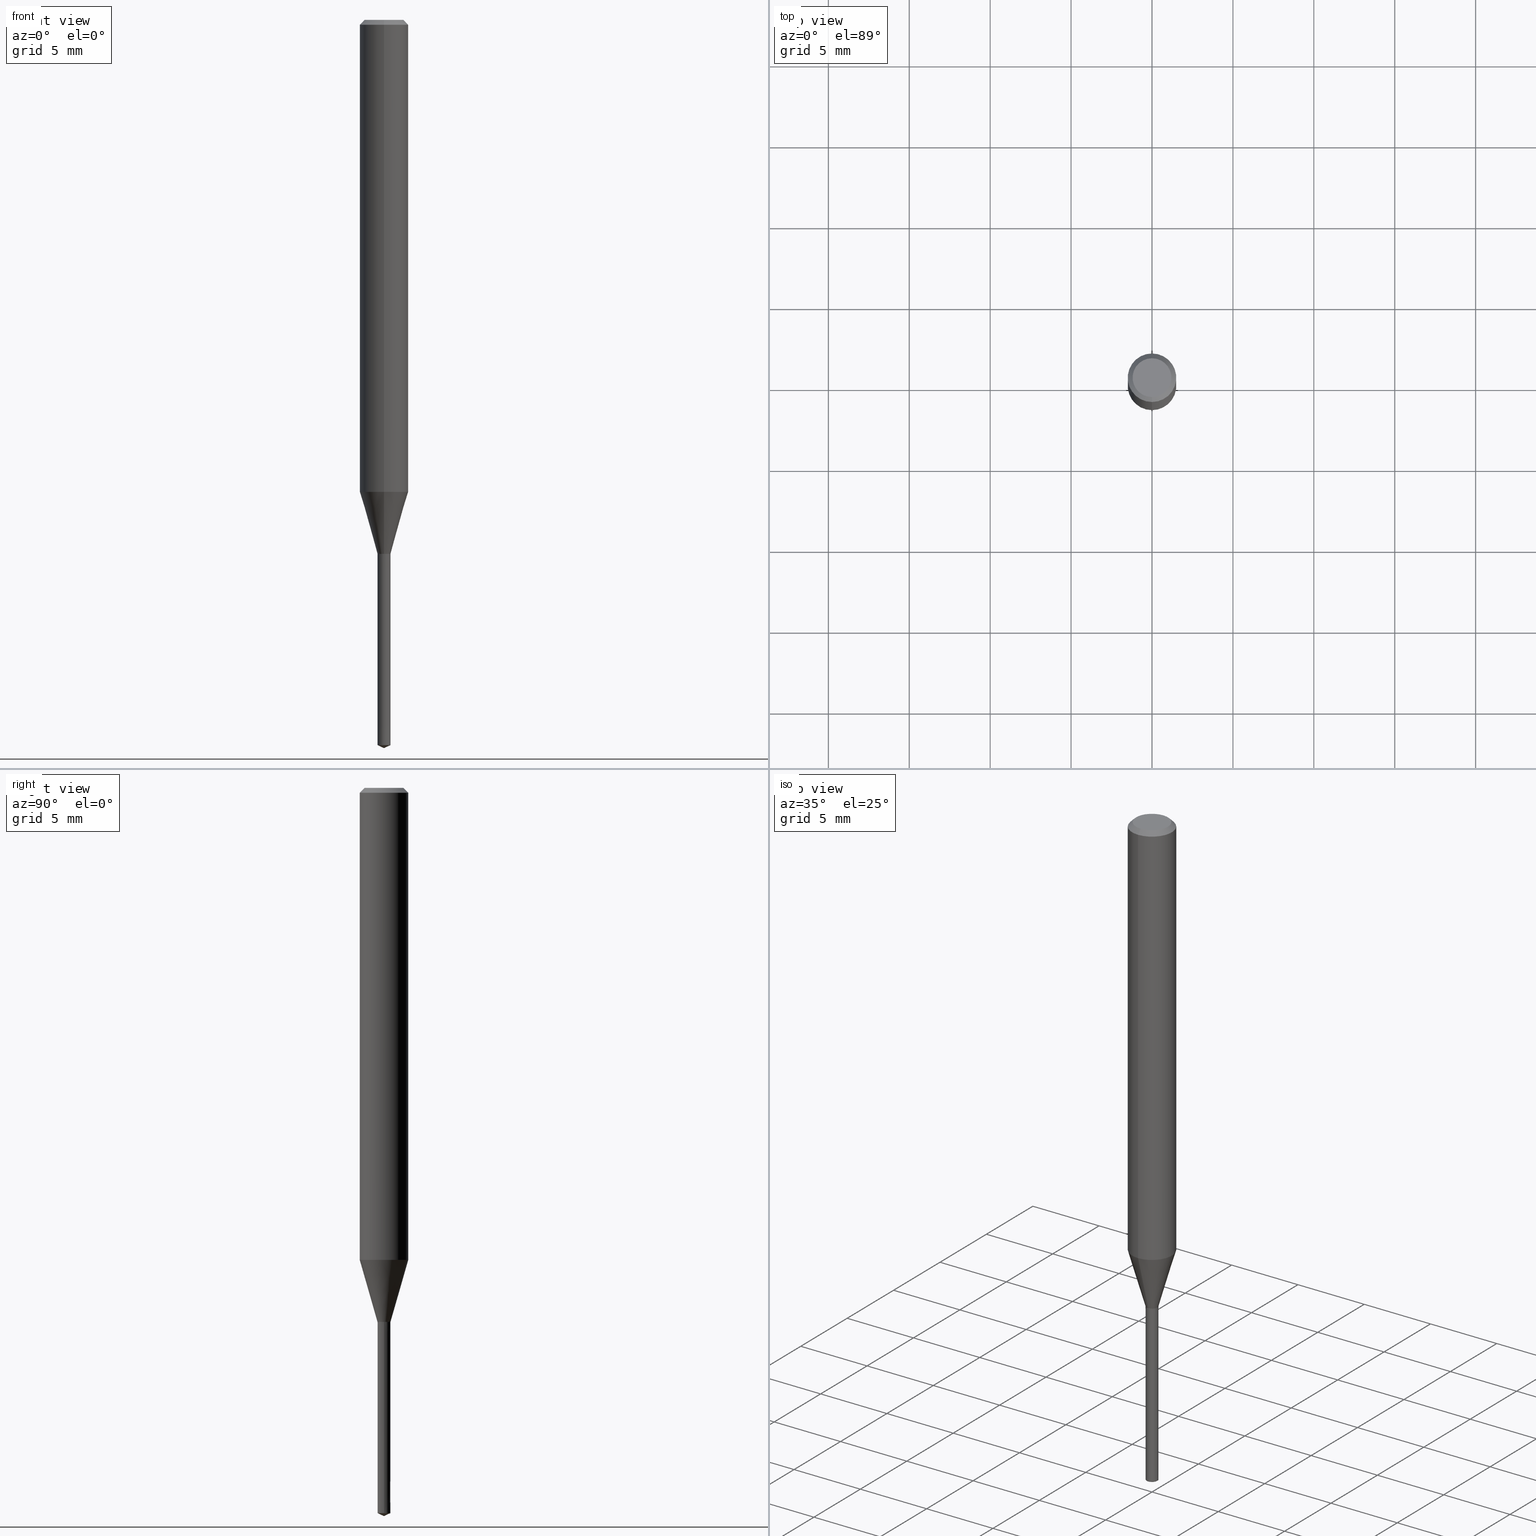
[diagram: canonical four-view strip — front | top / right | iso, engineering-drawing reading convention]
A machine part, canonical four-view strip (front | top / right | iso — engineering-drawing reading convention). The complete STEP part file that produces these views, byte-faithful:
ISO-10303-21;
HEADER;
FILE_DESCRIPTION(('no description'),'unknown implementation level');
FILE_NAME('UTDLX2080-120-Huellk.stp','  ',('CIMSOURCE GmbH'),('CADClick - KiM GmbH - www.kimweb.de'),'unknown preprocess','ACIS','unknown authorization');
FILE_SCHEMA(('automotive_design'));
ENDSEC;
DATA;
#1=MECHANICAL_DESIGN_GEOMETRIC_PRESENTATION_REPRESENTATION(' ',(#14,#15,#16,#17,#18,#19,#20,#21,#22,#23,#24,#25,#26,#27,#28,#29,#30,#31,#32,#33,#34,#35,#36,#37,#38,#39,#40,#41,#42,#43,#44,#45,#46,#47,#48,#49,#50,#51,#52,#53,#54,#55,#56,#57,#58,#59,#60,#61,#62,#63,#64,#65,#66,#67,#68,#69,#70,#71),#10);
#2=PRODUCT_DEFINITION_CONTEXT('',#72,'design');
#3=APPLICATION_PROTOCOL_DEFINITION('INTERNATIONAL STANDARD','automotive_design',1994,#72);
#4=PRODUCT_CATEGORY_RELATIONSHIP('NONE','NONE',#73,#74);
#5=SHAPE_DEFINITION_REPRESENTATION(#75,#76);
#6=PRODUCT_DEFINITION_CONTEXT('',#77,'design');
#7=APPLICATION_PROTOCOL_DEFINITION('INTERNATIONAL STANDARD','automotive_design',1994,#77);
#8=PRODUCT_CATEGORY_RELATIONSHIP('NONE','NONE',#78,#79);
#9=SHAPE_DEFINITION_REPRESENTATION(#80,#81);
#10= (GEOMETRIC_REPRESENTATION_CONTEXT(3)GLOBAL_UNCERTAINTY_ASSIGNED_CONTEXT((#84))GLOBAL_UNIT_ASSIGNED_CONTEXT((#86,#87,#88))REPRESENTATION_CONTEXT('NONE','WORKSPACE'));
#14=STYLED_ITEM('',(#90),#91);
#15=STYLED_ITEM('',(#92),#93);
#16=STYLED_ITEM('',(#94),#95);
#17=STYLED_ITEM('',(#96),#97);
#18=STYLED_ITEM('',(#98),#99);
#19=STYLED_ITEM('',(#100),#101);
#20=STYLED_ITEM('',(#102),#103);
#21=STYLED_ITEM('',(#104),#105);
#22=STYLED_ITEM('',(#106),#107);
#23=STYLED_ITEM('',(#108),#109);
#24=STYLED_ITEM('',(#110),#111);
#25=STYLED_ITEM('',(#112),#113);
#26=STYLED_ITEM('',(#114),#115);
#27=STYLED_ITEM('',(#116),#117);
#28=STYLED_ITEM('',(#118),#119);
#29=STYLED_ITEM('',(#120),#121);
#30=STYLED_ITEM('',(#122),#123);
#31=STYLED_ITEM('',(#124),#125);
#32=STYLED_ITEM('',(#126),#127);
#33=STYLED_ITEM('',(#128),#129);
#34=STYLED_ITEM('',(#130),#131);
#35=STYLED_ITEM('',(#132),#133);
#36=STYLED_ITEM('',(#134),#135);
#37=STYLED_ITEM('',(#136),#137);
#38=STYLED_ITEM('',(#138),#139);
#39=STYLED_ITEM('',(#140),#141);
#40=STYLED_ITEM('',(#142),#143);
#41=STYLED_ITEM('',(#144),#145);
#42=STYLED_ITEM('',(#146),#147);
#43=STYLED_ITEM('',(#148),#149);
#44=STYLED_ITEM('',(#150),#151);
#45=STYLED_ITEM('',(#152),#153);
#46=STYLED_ITEM('',(#154),#155);
#47=STYLED_ITEM('',(#156),#157);
#48=STYLED_ITEM('',(#158),#159);
#49=STYLED_ITEM('',(#160),#161);
#50=STYLED_ITEM('',(#162),#163);
#51=STYLED_ITEM('',(#164),#165);
#52=STYLED_ITEM('',(#166),#167);
#53=STYLED_ITEM('',(#168),#169);
#54=STYLED_ITEM('',(#170),#171);
#55=STYLED_ITEM('',(#172),#173);
#56=STYLED_ITEM('',(#174),#175);
#57=STYLED_ITEM('',(#176),#177);
#58=STYLED_ITEM('',(#178),#179);
#59=STYLED_ITEM('',(#180),#181);
#60=STYLED_ITEM('',(#182),#183);
#61=STYLED_ITEM('',(#184),#185);
#62=STYLED_ITEM('',(#186),#187);
#63=STYLED_ITEM('',(#188),#189);
#64=STYLED_ITEM('',(#190),#191);
#65=STYLED_ITEM('',(#192),#193);
#66=STYLED_ITEM('',(#194),#195);
#67=STYLED_ITEM('',(#196),#197);
#68=STYLED_ITEM('',(#198),#199);
#69=STYLED_ITEM('',(#200),#201);
#70=STYLED_ITEM('',(#202),#203);
#71=STYLED_ITEM('',(#204),#205);
#72=APPLICATION_CONTEXT(' ');
#73=PRODUCT_CATEGORY('part','NONE');
#74=PRODUCT_RELATED_PRODUCT_CATEGORY('detail',' ',(#206));
#75=PRODUCT_DEFINITION_SHAPE('NONE','NONE',#207);
#76=ADVANCED_BREP_SHAPE_REPRESENTATION('1',(#161,#208),#10);
#77=APPLICATION_CONTEXT(' ');
#78=PRODUCT_CATEGORY('part','NONE');
#79=PRODUCT_RELATED_PRODUCT_CATEGORY('detail',' ',(#209));
#80=PRODUCT_DEFINITION_SHAPE('NONE','NONE',#210);
#81=ADVANCED_BREP_SHAPE_REPRESENTATION('2',(#173,#211),#10);
#84=UNCERTAINTY_MEASURE_WITH_UNIT(LENGTH_MEASURE(1.0E-006),#86,'','');
#86= (CONVERSION_BASED_UNIT('MILLIMETRE',#214)LENGTH_UNIT()NAMED_UNIT(#217));
#87= (NAMED_UNIT(#219)PLANE_ANGLE_UNIT()SI_UNIT($,.RADIAN.));
#88= (NAMED_UNIT(#219)SOLID_ANGLE_UNIT()SI_UNIT($,.STERADIAN.));
#90=PRESENTATION_STYLE_ASSIGNMENT((#225));
#91=VERTEX_POINT('',#226);
#92=PRESENTATION_STYLE_ASSIGNMENT((#227));
#93=EDGE_CURVE('',#167,#91,#228,.T.);
#94=PRESENTATION_STYLE_ASSIGNMENT((#229));
#95=EDGE_CURVE('',#171,#147,#230,.T.);
#96=PRESENTATION_STYLE_ASSIGNMENT((#231));
#97=ADVANCED_FACE('',(#232),#233,.T.);
#98=PRESENTATION_STYLE_ASSIGNMENT((#234));
#99=EDGE_CURVE('',#91,#167,#235,.T.);
#100=PRESENTATION_STYLE_ASSIGNMENT((#236));
#101=ADVANCED_FACE('',(#237),#238,.T.);
#102=PRESENTATION_STYLE_ASSIGNMENT((#239));
#103=EDGE_CURVE('',#131,#139,#240,.T.);
#104=PRESENTATION_STYLE_ASSIGNMENT((#241));
#105=ADVANCED_FACE('',(#242),#243,.T.);
#106=PRESENTATION_STYLE_ASSIGNMENT((#244));
#107=ADVANCED_FACE('',(#245),#246,.T.);
#108=PRESENTATION_STYLE_ASSIGNMENT((#247));
#109=ADVANCED_FACE('',(#248),#249,.T.);
#110=PRESENTATION_STYLE_ASSIGNMENT((#250));
#111=EDGE_CURVE('',#91,#129,#251,.T.);
#112=PRESENTATION_STYLE_ASSIGNMENT((#252));
#113=EDGE_CURVE('',#153,#155,#253,.T.);
#114=PRESENTATION_STYLE_ASSIGNMENT((#254));
#115=EDGE_CURVE('',#157,#163,#255,.T.);
#116=PRESENTATION_STYLE_ASSIGNMENT((#256));
#117=ADVANCED_FACE('',(#257),#258,.T.);
#118=PRESENTATION_STYLE_ASSIGNMENT((#259));
#119=VERTEX_POINT('',#260);
#120=PRESENTATION_STYLE_ASSIGNMENT((#261));
#121=ADVANCED_FACE('',(#262),#263,.T.);
#122=PRESENTATION_STYLE_ASSIGNMENT((#264));
#123=EDGE_CURVE('',#147,#139,#265,.T.);
#124=PRESENTATION_STYLE_ASSIGNMENT((#266));
#125=EDGE_CURVE('',#171,#195,#267,.T.);
#126=PRESENTATION_STYLE_ASSIGNMENT((#268));
#127=EDGE_CURVE('',#163,#157,#269,.T.);
#128=PRESENTATION_STYLE_ASSIGNMENT((#270));
#129=VERTEX_POINT('',#271);
#130=PRESENTATION_STYLE_ASSIGNMENT((#272));
#131=VERTEX_POINT('',#273);
#132=PRESENTATION_STYLE_ASSIGNMENT((#274));
#133=ADVANCED_FACE('',(#275),#276,.T.);
#134=PRESENTATION_STYLE_ASSIGNMENT((#277));
#135=EDGE_CURVE('',#197,#119,#278,.T.);
#136=PRESENTATION_STYLE_ASSIGNMENT((#279));
#137=EDGE_CURVE('',#139,#195,#280,.T.);
#138=PRESENTATION_STYLE_ASSIGNMENT((#281));
#139=VERTEX_POINT('',#282);
#140=PRESENTATION_STYLE_ASSIGNMENT((#283));
#141=ADVANCED_FACE('',(#284),#285,.T.);
#142=PRESENTATION_STYLE_ASSIGNMENT((#286));
#143=EDGE_CURVE('',#119,#153,#287,.T.);
#144=PRESENTATION_STYLE_ASSIGNMENT((#288));
#145=ADVANCED_FACE('',(#289),#290,.T.);
#146=PRESENTATION_STYLE_ASSIGNMENT((#291));
#147=VERTEX_POINT('',#292);
#148=PRESENTATION_STYLE_ASSIGNMENT((#293));
#149=ADVANCED_FACE('',(#294),#295,.T.);
#150=PRESENTATION_STYLE_ASSIGNMENT((#296));
#151=EDGE_CURVE('',#157,#155,#297,.T.);
#152=PRESENTATION_STYLE_ASSIGNMENT((#298));
#153=VERTEX_POINT('',#299);
#154=PRESENTATION_STYLE_ASSIGNMENT((#300));
#155=VERTEX_POINT('',#301);
#156=PRESENTATION_STYLE_ASSIGNMENT((#302));
#157=VERTEX_POINT('',#303);
#158=PRESENTATION_STYLE_ASSIGNMENT((#304));
#159=EDGE_CURVE('',#153,#163,#305,.T.);
#160=PRESENTATION_STYLE_ASSIGNMENT((#306));
#161=MANIFOLD_SOLID_BREP('1',#307);
#162=PRESENTATION_STYLE_ASSIGNMENT((#308));
#163=VERTEX_POINT('',#309);
#164=PRESENTATION_STYLE_ASSIGNMENT((#310));
#165=ADVANCED_FACE('',(#311),#312,.T.);
#166=PRESENTATION_STYLE_ASSIGNMENT((#313));
#167=VERTEX_POINT('',#314);
#168=PRESENTATION_STYLE_ASSIGNMENT((#315));
#169=ADVANCED_FACE('',(#316),#317,.T.);
#170=PRESENTATION_STYLE_ASSIGNMENT((#318));
#171=VERTEX_POINT('',#319);
#172=PRESENTATION_STYLE_ASSIGNMENT((#320));
#173=MANIFOLD_SOLID_BREP('2',#321);
#174=PRESENTATION_STYLE_ASSIGNMENT((#322));
#175=EDGE_CURVE('',#155,#197,#323,.T.);
#176=PRESENTATION_STYLE_ASSIGNMENT((#324));
#177=ADVANCED_FACE('',(#325),#326,.T.);
#178=PRESENTATION_STYLE_ASSIGNMENT((#327));
#179=EDGE_CURVE('',#167,#119,#328,.T.);
#180=PRESENTATION_STYLE_ASSIGNMENT((#329));
#181=VERTEX_POINT('',#330);
#182=PRESENTATION_STYLE_ASSIGNMENT((#331));
#183=ADVANCED_FACE('',(#332),#333,.T.);
#184=PRESENTATION_STYLE_ASSIGNMENT((#334));
#185=EDGE_CURVE('',#195,#171,#335,.T.);
#186=PRESENTATION_STYLE_ASSIGNMENT((#336));
#187=EDGE_CURVE('',#129,#181,#337,.T.);
#188=PRESENTATION_STYLE_ASSIGNMENT((#338));
#189=EDGE_CURVE('',#181,#167,#339,.T.);
#190=PRESENTATION_STYLE_ASSIGNMENT((#340));
#191=EDGE_CURVE('',#155,#153,#341,.T.);
#192=PRESENTATION_STYLE_ASSIGNMENT((#342));
#193=EDGE_CURVE('',#119,#197,#343,.T.);
#194=PRESENTATION_STYLE_ASSIGNMENT((#344));
#195=VERTEX_POINT('',#345);
#196=PRESENTATION_STYLE_ASSIGNMENT((#346));
#197=VERTEX_POINT('',#347);
#198=PRESENTATION_STYLE_ASSIGNMENT((#348));
#199=EDGE_CURVE('',#197,#91,#349,.T.);
#200=PRESENTATION_STYLE_ASSIGNMENT((#350));
#201=EDGE_CURVE('',#181,#129,#351,.T.);
#202=PRESENTATION_STYLE_ASSIGNMENT((#352));
#203=EDGE_CURVE('',#147,#131,#353,.T.);
#204=PRESENTATION_STYLE_ASSIGNMENT((#354));
#205=EDGE_CURVE('',#139,#147,#355,.T.);
#206=PRODUCT('1','1','PART-1-DESC',(#356));
#207=PRODUCT_DEFINITION('NONE','NONE',#357,#2);
#208=AXIS2_PLACEMENT_3D('',#358,#359,#360);
#209=PRODUCT('2','2','PART-2-DESC',(#361));
#210=PRODUCT_DEFINITION('NONE','NONE',#362,#6);
#211=AXIS2_PLACEMENT_3D('',#363,#364,#365);
#214=LENGTH_MEASURE_WITH_UNIT(LENGTH_MEASURE(1.0),#366);
#217=DIMENSIONAL_EXPONENTS(1.0,0.0,0.0,0.0,0.0,0.0,0.0);
#219=DIMENSIONAL_EXPONENTS(0.0,0.0,0.0,0.0,0.0,0.0,0.0);
#225=POINT_STYLE(' ',#367,POSITIVE_LENGTH_MEASURE(1.0E-006),#368);
#226=CARTESIAN_POINT('',(0.0,0.4,-32.9991339745962));
#227=CURVE_STYLE('',#369,POSITIVE_LENGTH_MEASURE(1.0E-006),#370);
#228=CIRCLE('',#371,0.4);
#229=CURVE_STYLE('',#372,POSITIVE_LENGTH_MEASURE(1.0E-006),#373);
#230=LINE('',#374,#375);
#231=SURFACE_STYLE_USAGE(.BOTH.,#376);
#232=FACE_OUTER_BOUND('',#377,.T.);
#233=CONICAL_SURFACE('',#378,0.2,1.13446402049478);
#234=CURVE_STYLE('',#379,POSITIVE_LENGTH_MEASURE(1.0E-006),#380);
#235=CIRCLE('',#381,0.4);
#236=SURFACE_STYLE_USAGE(.BOTH.,#382);
#237=FACE_OUTER_BOUND('',#383,.T.);
#238=CONICAL_SURFACE('',#384,0.40025,0.523598775598408);
#239=CURVE_STYLE('',#385,POSITIVE_LENGTH_MEASURE(1.0E-006),#386);
#240=LINE('',#387,#388);
#241=SURFACE_STYLE_USAGE(.BOTH.,#389);
#242=FACE_OUTER_BOUND('',#390,.T.);
#243=CONICAL_SURFACE('',#391,0.40025,0.523598775598408);
#244=SURFACE_STYLE_USAGE(.BOTH.,#392);
#245=FACE_OUTER_BOUND('',#393,.T.);
#246=CYLINDRICAL_SURFACE('',#394,1.5);
#247=SURFACE_STYLE_USAGE(.BOTH.,#395);
#248=FACE_OUTER_BOUND('',#396,.T.);
#249=CONICAL_SURFACE('',#397,0.4005,8.4649083643237E-005);
#250=CURVE_STYLE('',#398,POSITIVE_LENGTH_MEASURE(1.0E-006),#399);
#251=LINE('',#400,#401);
#252=CURVE_STYLE('',#402,POSITIVE_LENGTH_MEASURE(1.0E-006),#403);
#253=CIRCLE('',#404,1.5);
#254=CURVE_STYLE('',#405,POSITIVE_LENGTH_MEASURE(1.0E-006),#406);
#255=CIRCLE('',#407,1.2);
#256=SURFACE_STYLE_USAGE(.BOTH.,#408);
#257=FACE_OUTER_BOUND('',#409,.T.);
#258=PLANE('',#410);
#259=POINT_STYLE(' ',#411,POSITIVE_LENGTH_MEASURE(1.0E-006),#412);
#260=CARTESIAN_POINT('',(1.83690953073357E-016,-1.5,-29.164));
#261=SURFACE_STYLE_USAGE(.BOTH.,#413);
#262=FACE_OUTER_BOUND('',#414,.T.);
#263=CONICAL_SURFACE('',#415,0.95,0.279323280297878);
#264=CURVE_STYLE('',#416,POSITIVE_LENGTH_MEASURE(1.0E-006),#417);
#265=CIRCLE('',#418,0.4);
#266=CURVE_STYLE('',#419,POSITIVE_LENGTH_MEASURE(1.0E-006),#420);
#267=CIRCLE('',#421,0.401);
#268=CURVE_STYLE('',#422,POSITIVE_LENGTH_MEASURE(1.0E-006),#423);
#269=CIRCLE('',#424,1.2);
#270=POINT_STYLE(' ',#425,POSITIVE_LENGTH_MEASURE(1.0E-006),#426);
#271=CARTESIAN_POINT('',(0.0,0.4005,-33.0));
#272=POINT_STYLE(' ',#427,POSITIVE_LENGTH_MEASURE(1.0E-006),#428);
#273=CARTESIAN_POINT('',(0.0,0.0,-45.0));
#274=SURFACE_STYLE_USAGE(.BOTH.,#429);
#275=FACE_OUTER_BOUND('',#430,.T.);
#276=CONICAL_SURFACE('',#431,0.95,0.279323280297878);
#277=CURVE_STYLE('',#432,POSITIVE_LENGTH_MEASURE(1.0E-006),#433);
#278=CIRCLE('',#434,1.5);
#279=CURVE_STYLE('',#435,POSITIVE_LENGTH_MEASURE(1.0E-006),#436);
#280=LINE('',#437,#438);
#281=POINT_STYLE(' ',#439,POSITIVE_LENGTH_MEASURE(1.0E-006),#440);
#282=CARTESIAN_POINT('',(0.4,4.89842541528951E-017,-44.81347694));
#283=SURFACE_STYLE_USAGE(.BOTH.,#441);
#284=FACE_OUTER_BOUND('',#442,.T.);
#285=CONICAL_SURFACE('',#443,1.35,0.785398163397447);
#286=CURVE_STYLE('',#444,POSITIVE_LENGTH_MEASURE(1.0E-006),#445);
#287=LINE('',#446,#447);
#288=SURFACE_STYLE_USAGE(.BOTH.,#448);
#289=FACE_OUTER_BOUND('',#449,.T.);
#290=CYLINDRICAL_SURFACE('',#450,1.5);
#291=POINT_STYLE(' ',#451,POSITIVE_LENGTH_MEASURE(1.0E-006),#452);
#292=CARTESIAN_POINT('',(-0.4,0.0,-44.81347694));
#293=SURFACE_STYLE_USAGE(.BOTH.,#453);
#294=FACE_OUTER_BOUND('',#454,.T.);
#295=CONICAL_SURFACE('',#455,1.35,0.785398163397447);
#296=CURVE_STYLE('',#456,POSITIVE_LENGTH_MEASURE(1.0E-006),#457);
#297=LINE('',#458,#459);
#298=POINT_STYLE(' ',#460,POSITIVE_LENGTH_MEASURE(1.0E-006),#461);
#299=CARTESIAN_POINT('',(1.83690953073357E-016,-1.5,-0.300000000000001));
#300=POINT_STYLE(' ',#462,POSITIVE_LENGTH_MEASURE(1.0E-006),#463);
#301=CARTESIAN_POINT('',(0.0,1.5,-0.300000000000001));
#302=POINT_STYLE(' ',#464,POSITIVE_LENGTH_MEASURE(1.0E-006),#465);
#303=CARTESIAN_POINT('',(0.0,1.2,0.0));
#304=CURVE_STYLE('',#466,POSITIVE_LENGTH_MEASURE(1.0E-006),#467);
#305=LINE('',#468,#469);
#306=SURFACE_STYLE_USAGE(.BOTH.,#470);
#307=CLOSED_SHELL('',(#101,#133,#107,#141,#169,#149,#145,#121,#105,#165));
#308=POINT_STYLE(' ',#471,POSITIVE_LENGTH_MEASURE(1.0E-006),#472);
#309=CARTESIAN_POINT('',(1.46952762458685E-016,-1.2,0.0));
#310=SURFACE_STYLE_USAGE(.BOTH.,#473);
#311=FACE_OUTER_BOUND('',#474,.T.);
#312=PLANE('',#475);
#313=POINT_STYLE(' ',#476,POSITIVE_LENGTH_MEASURE(1.0E-006),#477);
#314=CARTESIAN_POINT('',(4.89842541528951E-017,-0.4,-32.9991339745962));
#315=SURFACE_STYLE_USAGE(.BOTH.,#478);
#316=FACE_OUTER_BOUND('',#479,.T.);
#317=PLANE('',#480);
#318=POINT_STYLE(' ',#481,POSITIVE_LENGTH_MEASURE(1.0E-006),#482);
#319=CARTESIAN_POINT('',(-0.401,0.0,-33.0));
#320=SURFACE_STYLE_USAGE(.BOTH.,#483);
#321=CLOSED_SHELL('',(#97,#183,#117,#109,#177));
#322=CURVE_STYLE('',#484,POSITIVE_LENGTH_MEASURE(1.0E-006),#485);
#323=LINE('',#486,#487);
#324=SURFACE_STYLE_USAGE(.BOTH.,#488);
#325=FACE_OUTER_BOUND('',#489,.T.);
#326=CONICAL_SURFACE('',#490,0.2,1.13446402049478);
#327=CURVE_STYLE('',#491,POSITIVE_LENGTH_MEASURE(1.0E-006),#492);
#328=LINE('',#493,#494);
#329=POINT_STYLE(' ',#495,POSITIVE_LENGTH_MEASURE(1.0E-006),#496);
#330=CARTESIAN_POINT('',(4.90454844705862E-017,-0.4005,-33.0));
#331=SURFACE_STYLE_USAGE(.BOTH.,#497);
#332=FACE_OUTER_BOUND('',#498,.T.);
#333=CONICAL_SURFACE('',#499,0.4005,8.4649083643237E-005);
#334=CURVE_STYLE('',#500,POSITIVE_LENGTH_MEASURE(1.0E-006),#501);
#335=CIRCLE('',#502,0.401);
#336=CURVE_STYLE('',#503,POSITIVE_LENGTH_MEASURE(1.0E-006),#504);
#337=CIRCLE('',#505,0.4005);
#338=CURVE_STYLE('',#506,POSITIVE_LENGTH_MEASURE(1.0E-006),#507);
#339=LINE('',#508,#509);
#340=CURVE_STYLE('',#510,POSITIVE_LENGTH_MEASURE(1.0E-006),#511);
#341=CIRCLE('',#512,1.5);
#342=CURVE_STYLE('',#513,POSITIVE_LENGTH_MEASURE(1.0E-006),#514);
#343=CIRCLE('',#515,1.5);
#344=POINT_STYLE(' ',#516,POSITIVE_LENGTH_MEASURE(1.0E-006),#517);
#345=CARTESIAN_POINT('',(0.401,4.91067147882773E-017,-33.0));
#346=POINT_STYLE(' ',#518,POSITIVE_LENGTH_MEASURE(1.0E-006),#519);
#347=CARTESIAN_POINT('',(0.0,1.5,-29.164));
#348=CURVE_STYLE('',#520,POSITIVE_LENGTH_MEASURE(1.0E-006),#521);
#349=LINE('',#522,#523);
#350=CURVE_STYLE('',#524,POSITIVE_LENGTH_MEASURE(1.0E-006),#525);
#351=CIRCLE('',#526,0.4005);
#352=CURVE_STYLE('',#527,POSITIVE_LENGTH_MEASURE(1.0E-006),#528);
#353=LINE('',#529,#530);
#354=CURVE_STYLE('',#531,POSITIVE_LENGTH_MEASURE(1.0E-006),#532);
#355=CIRCLE('',#533,0.4);
#356=PRODUCT_CONTEXT('',#72,'mechanical');
#357=PRODUCT_DEFINITION_FORMATION_WITH_SPECIFIED_SOURCE(' ','NONE',#206,.NOT_KNOWN.);
#358=CARTESIAN_POINT('',(0.0,0.0,0.0));
#359=DIRECTION('',(0.0,0.0,1.0));
#360=DIRECTION('',(1.0,0.0,0.0));
#361=PRODUCT_CONTEXT('',#77,'mechanical');
#362=PRODUCT_DEFINITION_FORMATION_WITH_SPECIFIED_SOURCE(' ','NONE',#209,.NOT_KNOWN.);
#363=CARTESIAN_POINT('',(0.0,0.0,0.0));
#364=DIRECTION('',(0.0,0.0,1.0));
#365=DIRECTION('',(1.0,0.0,0.0));
#366= (NAMED_UNIT(#217)LENGTH_UNIT()SI_UNIT(.MILLI.,.METRE.));
#367=PRE_DEFINED_MARKER('');
#368=COLOUR_RGB('',0.498039215803146,0.498039215803146,0.498039215803146);
#369=DRAUGHTING_PRE_DEFINED_CURVE_FONT('continuous');
#370=COLOUR_RGB('',0.498039215803146,0.498039215803146,0.498039215803146);
#371=AXIS2_PLACEMENT_3D('',#535,#536,#537);
#372=DRAUGHTING_PRE_DEFINED_CURVE_FONT('continuous');
#373=COLOUR_RGB('',0.800000011920929,0.800000011920929,0.800000011920929);
#374=CARTESIAN_POINT('',(-0.4005,-4.90454844705862E-017,-38.90673847));
#375=VECTOR('',#538,1.0);
#376=SURFACE_SIDE_STYLE('',(#539));
#377=EDGE_LOOP('',(#540,#541,#542));
#378=AXIS2_PLACEMENT_3D('',#543,#544,#545);
#379=DRAUGHTING_PRE_DEFINED_CURVE_FONT('continuous');
#380=COLOUR_RGB('',0.498039215803146,0.498039215803146,0.498039215803146);
#381=AXIS2_PLACEMENT_3D('',#546,#547,#548);
#382=SURFACE_SIDE_STYLE('',(#549));
#383=EDGE_LOOP('',(#550,#551,#552,#553));
#384=AXIS2_PLACEMENT_3D('',#554,#555,#556);
#385=DRAUGHTING_PRE_DEFINED_CURVE_FONT('continuous');
#386=COLOUR_RGB('',0.800000011920929,0.800000011920929,0.800000011920929);
#387=CARTESIAN_POINT('',(0.2,2.44921270764475E-017,-44.90673847));
#388=VECTOR('',#557,1.0);
#389=SURFACE_SIDE_STYLE('',(#558));
#390=EDGE_LOOP('',(#559,#560,#561,#562));
#391=AXIS2_PLACEMENT_3D('',#563,#564,#565);
#392=SURFACE_SIDE_STYLE('',(#566));
#393=EDGE_LOOP('',(#567,#568,#569,#570));
#394=AXIS2_PLACEMENT_3D('',#571,#572,#573);
#395=SURFACE_SIDE_STYLE('',(#574));
#396=EDGE_LOOP('',(#575,#576,#577,#578));
#397=AXIS2_PLACEMENT_3D('',#579,#580,#581);
#398=DRAUGHTING_PRE_DEFINED_CURVE_FONT('continuous');
#399=COLOUR_RGB('',0.498039215803146,0.498039215803146,0.498039215803146);
#400=CARTESIAN_POINT('',(-4.90148693117407E-017,0.40025,-32.9995669872981));
#401=VECTOR('',#582,1.0);
#402=DRAUGHTING_PRE_DEFINED_CURVE_FONT('continuous');
#403=COLOUR_RGB('',0.498039215803146,0.498039215803146,0.498039215803146);
#404=AXIS2_PLACEMENT_3D('',#583,#584,#585);
#405=DRAUGHTING_PRE_DEFINED_CURVE_FONT('continuous');
#406=COLOUR_RGB('',0.498039215803146,0.498039215803146,0.498039215803146);
#407=AXIS2_PLACEMENT_3D('',#586,#587,#588);
#408=SURFACE_SIDE_STYLE('',(#589));
#409=EDGE_LOOP('',(#590,#591));
#410=AXIS2_PLACEMENT_3D('',#592,#593,#594);
#411=PRE_DEFINED_MARKER('');
#412=COLOUR_RGB('',0.498039215803146,0.498039215803146,0.498039215803146);
#413=SURFACE_SIDE_STYLE('',(#595));
#414=EDGE_LOOP('',(#596,#597,#598,#599));
#415=AXIS2_PLACEMENT_3D('',#600,#601,#602);
#416=DRAUGHTING_PRE_DEFINED_CURVE_FONT('continuous');
#417=COLOUR_RGB('',0.800000011920929,0.800000011920929,0.800000011920929);
#418=AXIS2_PLACEMENT_3D('',#603,#604,#605);
#419=DRAUGHTING_PRE_DEFINED_CURVE_FONT('continuous');
#420=COLOUR_RGB('',0.800000011920929,0.800000011920929,0.800000011920929);
#421=AXIS2_PLACEMENT_3D('',#606,#607,#608);
#422=DRAUGHTING_PRE_DEFINED_CURVE_FONT('continuous');
#423=COLOUR_RGB('',0.498039215803146,0.498039215803146,0.498039215803146);
#424=AXIS2_PLACEMENT_3D('',#609,#610,#611);
#425=PRE_DEFINED_MARKER('');
#426=COLOUR_RGB('',0.498039215803146,0.498039215803146,0.498039215803146);
#427=PRE_DEFINED_MARKER('');
#428=COLOUR_RGB('',0.800000011920929,0.800000011920929,0.800000011920929);
#429=SURFACE_SIDE_STYLE('',(#612));
#430=EDGE_LOOP('',(#613,#614,#615,#616));
#431=AXIS2_PLACEMENT_3D('',#617,#618,#619);
#432=DRAUGHTING_PRE_DEFINED_CURVE_FONT('continuous');
#433=COLOUR_RGB('',0.498039215803146,0.498039215803146,0.498039215803146);
#434=AXIS2_PLACEMENT_3D('',#620,#621,#622);
#435=DRAUGHTING_PRE_DEFINED_CURVE_FONT('continuous');
#436=COLOUR_RGB('',0.800000011920929,0.800000011920929,0.800000011920929);
#437=CARTESIAN_POINT('',(0.4005,4.90454844705862E-017,-38.90673847));
#438=VECTOR('',#623,1.0);
#439=PRE_DEFINED_MARKER('');
#440=COLOUR_RGB('',0.800000011920929,0.800000011920929,0.800000011920929);
#441=SURFACE_SIDE_STYLE('',(#624));
#442=EDGE_LOOP('',(#625,#626,#627,#628));
#443=AXIS2_PLACEMENT_3D('',#629,#630,#631);
#444=DRAUGHTING_PRE_DEFINED_CURVE_FONT('continuous');
#445=COLOUR_RGB('',0.498039215803146,0.498039215803146,0.498039215803146);
#446=CARTESIAN_POINT('',(1.83690953073357E-016,-1.5,-14.732));
#447=VECTOR('',#632,1.0);
#448=SURFACE_SIDE_STYLE('',(#633));
#449=EDGE_LOOP('',(#634,#635,#636,#637));
#450=AXIS2_PLACEMENT_3D('',#638,#639,#640);
#451=PRE_DEFINED_MARKER('');
#452=COLOUR_RGB('',0.800000011920929,0.800000011920929,0.800000011920929);
#453=SURFACE_SIDE_STYLE('',(#641));
#454=EDGE_LOOP('',(#642,#643,#644,#645));
#455=AXIS2_PLACEMENT_3D('',#646,#647,#648);
#456=DRAUGHTING_PRE_DEFINED_CURVE_FONT('continuous');
#457=COLOUR_RGB('',0.498039215803146,0.498039215803146,0.498039215803146);
#458=CARTESIAN_POINT('',(-1.65321857766021E-016,1.35,-0.150000000000002));
#459=VECTOR('',#649,1.0);
#460=PRE_DEFINED_MARKER('');
#461=COLOUR_RGB('',0.498039215803146,0.498039215803146,0.498039215803146);
#462=PRE_DEFINED_MARKER('');
#463=COLOUR_RGB('',0.498039215803146,0.498039215803146,0.498039215803146);
#464=PRE_DEFINED_MARKER('');
#465=COLOUR_RGB('',0.498039215803146,0.498039215803146,0.498039215803146);
#466=DRAUGHTING_PRE_DEFINED_CURVE_FONT('continuous');
#467=COLOUR_RGB('',0.498039215803146,0.498039215803146,0.498039215803146);
#468=CARTESIAN_POINT('',(1.65321857766021E-016,-1.35,-0.150000000000002));
#469=VECTOR('',#650,1.0);
#470=SURFACE_SIDE_STYLE('',(#651));
#471=PRE_DEFINED_MARKER('');
#472=COLOUR_RGB('',0.498039215803146,0.498039215803146,0.498039215803146);
#473=SURFACE_SIDE_STYLE('',(#652));
#474=EDGE_LOOP('',(#653,#654));
#475=AXIS2_PLACEMENT_3D('',#655,#656,#657);
#476=PRE_DEFINED_MARKER('');
#477=COLOUR_RGB('',0.498039215803146,0.498039215803146,0.498039215803146);
#478=SURFACE_SIDE_STYLE('',(#658));
#479=EDGE_LOOP('',(#659,#660));
#480=AXIS2_PLACEMENT_3D('',#661,#662,#663);
#481=PRE_DEFINED_MARKER('');
#482=COLOUR_RGB('',0.800000011920929,0.800000011920929,0.800000011920929);
#483=SURFACE_SIDE_STYLE('',(#664));
#484=DRAUGHTING_PRE_DEFINED_CURVE_FONT('continuous');
#485=COLOUR_RGB('',0.498039215803146,0.498039215803146,0.498039215803146);
#486=CARTESIAN_POINT('',(-1.83690953073357E-016,1.5,-14.732));
#487=VECTOR('',#665,1.0);
#488=SURFACE_SIDE_STYLE('',(#666));
#489=EDGE_LOOP('',(#667,#668,#669));
#490=AXIS2_PLACEMENT_3D('',#670,#671,#672);
#491=DRAUGHTING_PRE_DEFINED_CURVE_FONT('continuous');
#492=COLOUR_RGB('',0.498039215803146,0.498039215803146,0.498039215803146);
#493=CARTESIAN_POINT('',(1.16337603613126E-016,-0.95,-31.0815669872981));
#494=VECTOR('',#673,1.0);
#495=PRE_DEFINED_MARKER('');
#496=COLOUR_RGB('',0.498039215803146,0.498039215803146,0.498039215803146);
#497=SURFACE_SIDE_STYLE('',(#674));
#498=EDGE_LOOP('',(#675,#676,#677,#678));
#499=AXIS2_PLACEMENT_3D('',#679,#680,#681);
#500=DRAUGHTING_PRE_DEFINED_CURVE_FONT('continuous');
#501=COLOUR_RGB('',0.800000011920929,0.800000011920929,0.800000011920929);
#502=AXIS2_PLACEMENT_3D('',#682,#683,#684);
#503=DRAUGHTING_PRE_DEFINED_CURVE_FONT('continuous');
#504=COLOUR_RGB('',0.498039215803146,0.498039215803146,0.498039215803146);
#505=AXIS2_PLACEMENT_3D('',#685,#686,#687);
#506=DRAUGHTING_PRE_DEFINED_CURVE_FONT('continuous');
#507=COLOUR_RGB('',0.498039215803146,0.498039215803146,0.498039215803146);
#508=CARTESIAN_POINT('',(4.90148693117407E-017,-0.40025,-32.9995669872981));
#509=VECTOR('',#688,1.0);
#510=DRAUGHTING_PRE_DEFINED_CURVE_FONT('continuous');
#511=COLOUR_RGB('',0.498039215803146,0.498039215803146,0.498039215803146);
#512=AXIS2_PLACEMENT_3D('',#689,#690,#691);
#513=DRAUGHTING_PRE_DEFINED_CURVE_FONT('continuous');
#514=COLOUR_RGB('',0.498039215803146,0.498039215803146,0.498039215803146);
#515=AXIS2_PLACEMENT_3D('',#692,#693,#694);
#516=PRE_DEFINED_MARKER('');
#517=COLOUR_RGB('',0.800000011920929,0.800000011920929,0.800000011920929);
#518=PRE_DEFINED_MARKER('');
#519=COLOUR_RGB('',0.498039215803146,0.498039215803146,0.498039215803146);
#520=DRAUGHTING_PRE_DEFINED_CURVE_FONT('continuous');
#521=COLOUR_RGB('',0.498039215803146,0.498039215803146,0.498039215803146);
#522=CARTESIAN_POINT('',(-1.16337603613126E-016,0.95,-31.0815669872981));
#523=VECTOR('',#695,1.0);
#524=DRAUGHTING_PRE_DEFINED_CURVE_FONT('continuous');
#525=COLOUR_RGB('',0.498039215803146,0.498039215803146,0.498039215803146);
#526=AXIS2_PLACEMENT_3D('',#696,#697,#698);
#527=DRAUGHTING_PRE_DEFINED_CURVE_FONT('continuous');
#528=COLOUR_RGB('',0.800000011920929,0.800000011920929,0.800000011920929);
#529=CARTESIAN_POINT('',(-0.2,-2.44921270764475E-017,-44.90673847));
#530=VECTOR('',#699,1.0);
#531=DRAUGHTING_PRE_DEFINED_CURVE_FONT('continuous');
#532=COLOUR_RGB('',0.800000011920929,0.800000011920929,0.800000011920929);
#533=AXIS2_PLACEMENT_3D('',#700,#701,#702);
#535=CARTESIAN_POINT('',(0.0,0.0,-32.9991339745962));
#536=DIRECTION('',(0.0,0.0,-1.0));
#537=DIRECTION('',(0.0,1.0,0.0));
#538=DIRECTION('',(8.46490835421453E-005,1.03661805550952E-020,-0.999999996417266));
#539=SURFACE_STYLE_FILL_AREA(#703);
#540=ORIENTED_EDGE('',*,*,#103,.F.);
#541=ORIENTED_EDGE('',*,*,#203,.F.);
#542=ORIENTED_EDGE('',*,*,#123,.T.);
#543=CARTESIAN_POINT('',(0.0,0.0,-44.90673847));
#544=DIRECTION('',(-0.0,-0.0,1.0));
#545=DIRECTION('',(-1.0,0.0,0.0));
#546=CARTESIAN_POINT('',(0.0,0.0,-32.9991339745962));
#547=DIRECTION('',(0.0,0.0,-1.0));
#548=DIRECTION('',(0.0,1.0,0.0));
#549=SURFACE_STYLE_FILL_AREA(#704);
#550=ORIENTED_EDGE('',*,*,#111,.F.);
#551=ORIENTED_EDGE('',*,*,#99,.T.);
#552=ORIENTED_EDGE('',*,*,#189,.F.);
#553=ORIENTED_EDGE('',*,*,#187,.F.);
#554=CARTESIAN_POINT('',(0.0,0.0,-32.9995669872981));
#555=DIRECTION('',(0.0,-0.0,-1.0));
#556=DIRECTION('',(0.0,1.0,0.0));
#557=DIRECTION('',(0.906307789867543,1.10987027799051E-016,0.422618255669829));
#558=SURFACE_STYLE_FILL_AREA(#705);
#559=ORIENTED_EDGE('',*,*,#111,.T.);
#560=ORIENTED_EDGE('',*,*,#201,.F.);
#561=ORIENTED_EDGE('',*,*,#189,.T.);
#562=ORIENTED_EDGE('',*,*,#93,.T.);
#563=CARTESIAN_POINT('',(0.0,0.0,-32.9995669872981));
#564=DIRECTION('',(0.0,-0.0,-1.0));
#565=DIRECTION('',(0.0,1.0,0.0));
#566=SURFACE_STYLE_FILL_AREA(#706);
#567=ORIENTED_EDGE('',*,*,#175,.F.);
#568=ORIENTED_EDGE('',*,*,#191,.T.);
#569=ORIENTED_EDGE('',*,*,#143,.F.);
#570=ORIENTED_EDGE('',*,*,#135,.F.);
#571=CARTESIAN_POINT('',(0.0,0.0,-14.732));
#572=DIRECTION('',(-0.0,-0.0,1.0));
#573=DIRECTION('',(0.0,1.0,0.0));
#574=SURFACE_STYLE_FILL_AREA(#707);
#575=ORIENTED_EDGE('',*,*,#95,.T.);
#576=ORIENTED_EDGE('',*,*,#205,.F.);
#577=ORIENTED_EDGE('',*,*,#137,.T.);
#578=ORIENTED_EDGE('',*,*,#185,.T.);
#579=CARTESIAN_POINT('',(0.0,0.0,-38.90673847));
#580=DIRECTION('',(-0.0,-0.0,1.0));
#581=DIRECTION('',(-1.0,0.0,0.0));
#582=DIRECTION('',(-6.12303176911305E-017,0.500000000000095,-0.866025403784384));
#583=CARTESIAN_POINT('',(0.0,0.0,-0.300000000000001));
#584=DIRECTION('',(0.0,0.0,-1.0));
#585=DIRECTION('',(0.0,1.0,0.0));
#586=CARTESIAN_POINT('',(0.0,0.0,0.0));
#587=DIRECTION('',(0.0,0.0,-1.0));
#588=DIRECTION('',(0.0,1.0,0.0));
#589=SURFACE_STYLE_FILL_AREA(#708);
#590=ORIENTED_EDGE('',*,*,#125,.F.);
#591=ORIENTED_EDGE('',*,*,#185,.F.);
#592=CARTESIAN_POINT('',(-0.2005,0.0,-33.0));
#593=DIRECTION('',(0.0,0.0,1.0));
#594=DIRECTION('',(1.0,0.0,0.0));
#595=SURFACE_STYLE_FILL_AREA(#709);
#596=ORIENTED_EDGE('',*,*,#199,.T.);
#597=ORIENTED_EDGE('',*,*,#93,.F.);
#598=ORIENTED_EDGE('',*,*,#179,.T.);
#599=ORIENTED_EDGE('',*,*,#193,.T.);
#600=CARTESIAN_POINT('',(0.0,0.0,-31.0815669872981));
#601=DIRECTION('',(-0.0,-0.0,1.0));
#602=DIRECTION('',(0.0,1.0,0.0));
#603=CARTESIAN_POINT('',(0.0,0.0,-44.81347694));
#604=DIRECTION('',(0.0,0.0,-1.0));
#605=DIRECTION('',(-1.0,0.0,0.0));
#606=CARTESIAN_POINT('',(0.0,0.0,-33.0));
#607=DIRECTION('',(0.0,0.0,-1.0));
#608=DIRECTION('',(-1.0,0.0,0.0));
#609=CARTESIAN_POINT('',(0.0,0.0,0.0));
#610=DIRECTION('',(0.0,0.0,-1.0));
#611=DIRECTION('',(0.0,1.0,0.0));
#612=SURFACE_STYLE_FILL_AREA(#710);
#613=ORIENTED_EDGE('',*,*,#199,.F.);
#614=ORIENTED_EDGE('',*,*,#135,.T.);
#615=ORIENTED_EDGE('',*,*,#179,.F.);
#616=ORIENTED_EDGE('',*,*,#99,.F.);
#617=CARTESIAN_POINT('',(0.0,0.0,-31.0815669872981));
#618=DIRECTION('',(-0.0,-0.0,1.0));
#619=DIRECTION('',(0.0,1.0,0.0));
#620=CARTESIAN_POINT('',(0.0,0.0,-29.164));
#621=DIRECTION('',(0.0,0.0,-1.0));
#622=DIRECTION('',(0.0,1.0,0.0));
#623=DIRECTION('',(8.46490835421453E-005,1.03661805550952E-020,0.999999996417266));
#624=SURFACE_STYLE_FILL_AREA(#711);
#625=ORIENTED_EDGE('',*,*,#151,.F.);
#626=ORIENTED_EDGE('',*,*,#115,.T.);
#627=ORIENTED_EDGE('',*,*,#159,.F.);
#628=ORIENTED_EDGE('',*,*,#191,.F.);
#629=CARTESIAN_POINT('',(0.0,0.0,-0.150000000000002));
#630=DIRECTION('',(0.0,-0.0,-1.0));
#631=DIRECTION('',(0.0,1.0,0.0));
#632=DIRECTION('',(-0.0,-0.0,1.0));
#633=SURFACE_STYLE_FILL_AREA(#712);
#634=ORIENTED_EDGE('',*,*,#175,.T.);
#635=ORIENTED_EDGE('',*,*,#193,.F.);
#636=ORIENTED_EDGE('',*,*,#143,.T.);
#637=ORIENTED_EDGE('',*,*,#113,.T.);
#638=CARTESIAN_POINT('',(0.0,0.0,-14.732));
#639=DIRECTION('',(-0.0,-0.0,1.0));
#640=DIRECTION('',(0.0,1.0,0.0));
#641=SURFACE_STYLE_FILL_AREA(#713);
#642=ORIENTED_EDGE('',*,*,#151,.T.);
#643=ORIENTED_EDGE('',*,*,#113,.F.);
#644=ORIENTED_EDGE('',*,*,#159,.T.);
#645=ORIENTED_EDGE('',*,*,#127,.T.);
#646=CARTESIAN_POINT('',(0.0,0.0,-0.150000000000002));
#647=DIRECTION('',(0.0,-0.0,-1.0));
#648=DIRECTION('',(0.0,1.0,0.0));
#649=DIRECTION('',(-8.65927457071934E-017,0.707106781186546,-0.707106781186549));
#650=DIRECTION('',(-8.65927457071934E-017,0.707106781186546,0.707106781186549));
#651=SURFACE_STYLE_FILL_AREA(#714);
#652=SURFACE_STYLE_FILL_AREA(#715);
#653=ORIENTED_EDGE('',*,*,#187,.T.);
#654=ORIENTED_EDGE('',*,*,#201,.T.);
#655=CARTESIAN_POINT('',(0.0,0.20025,-33.0));
#656=DIRECTION('',(0.0,0.0,-1.0));
#657=DIRECTION('',(0.0,1.0,0.0));
#658=SURFACE_STYLE_FILL_AREA(#716);
#659=ORIENTED_EDGE('',*,*,#115,.F.);
#660=ORIENTED_EDGE('',*,*,#127,.F.);
#661=CARTESIAN_POINT('',(0.0,0.6,0.0));
#662=DIRECTION('',(-0.0,0.0,1.0));
#663=DIRECTION('',(0.0,-1.0,0.0));
#664=SURFACE_STYLE_FILL_AREA(#717);
#665=DIRECTION('',(0.0,0.0,-1.0));
#666=SURFACE_STYLE_FILL_AREA(#718);
#667=ORIENTED_EDGE('',*,*,#103,.T.);
#668=ORIENTED_EDGE('',*,*,#205,.T.);
#669=ORIENTED_EDGE('',*,*,#203,.T.);
#670=CARTESIAN_POINT('',(0.0,0.0,-44.90673847));
#671=DIRECTION('',(-0.0,-0.0,1.0));
#672=DIRECTION('',(-1.0,0.0,0.0));
#673=DIRECTION('',(3.37630364420972E-017,-0.275705220185345,0.961242233551226));
#674=SURFACE_STYLE_FILL_AREA(#719);
#675=ORIENTED_EDGE('',*,*,#95,.F.);
#676=ORIENTED_EDGE('',*,*,#125,.T.);
#677=ORIENTED_EDGE('',*,*,#137,.F.);
#678=ORIENTED_EDGE('',*,*,#123,.F.);
#679=CARTESIAN_POINT('',(0.0,0.0,-38.90673847));
#680=DIRECTION('',(-0.0,-0.0,1.0));
#681=DIRECTION('',(-1.0,0.0,0.0));
#682=CARTESIAN_POINT('',(0.0,0.0,-33.0));
#683=DIRECTION('',(0.0,0.0,-1.0));
#684=DIRECTION('',(-1.0,0.0,0.0));
#685=CARTESIAN_POINT('',(0.0,0.0,-33.0));
#686=DIRECTION('',(0.0,0.0,-1.0));
#687=DIRECTION('',(0.0,1.0,0.0));
#688=DIRECTION('',(-6.12303176911305E-017,0.500000000000095,0.866025403784384));
#689=CARTESIAN_POINT('',(0.0,0.0,-0.300000000000001));
#690=DIRECTION('',(0.0,0.0,-1.0));
#691=DIRECTION('',(0.0,1.0,0.0));
#692=CARTESIAN_POINT('',(0.0,0.0,-29.164));
#693=DIRECTION('',(0.0,0.0,-1.0));
#694=DIRECTION('',(0.0,1.0,0.0));
#695=DIRECTION('',(3.37630364420972E-017,-0.275705220185345,-0.961242233551226));
#696=CARTESIAN_POINT('',(0.0,0.0,-33.0));
#697=DIRECTION('',(0.0,0.0,-1.0));
#698=DIRECTION('',(0.0,1.0,0.0));
#699=DIRECTION('',(0.906307789867543,1.10987027799051E-016,-0.422618255669829));
#700=CARTESIAN_POINT('',(0.0,0.0,-44.81347694));
#701=DIRECTION('',(0.0,0.0,-1.0));
#702=DIRECTION('',(-1.0,0.0,0.0));
#703=FILL_AREA_STYLE('',(#720));
#704=FILL_AREA_STYLE('',(#721));
#705=FILL_AREA_STYLE('',(#722));
#706=FILL_AREA_STYLE('',(#723));
#707=FILL_AREA_STYLE('',(#724));
#708=FILL_AREA_STYLE('',(#725));
#709=FILL_AREA_STYLE('',(#726));
#710=FILL_AREA_STYLE('',(#727));
#711=FILL_AREA_STYLE('',(#728));
#712=FILL_AREA_STYLE('',(#729));
#713=FILL_AREA_STYLE('',(#730));
#714=FILL_AREA_STYLE('',(#731));
#715=FILL_AREA_STYLE('',(#732));
#716=FILL_AREA_STYLE('',(#733));
#717=FILL_AREA_STYLE('',(#734));
#718=FILL_AREA_STYLE('',(#735));
#719=FILL_AREA_STYLE('',(#736));
#720=FILL_AREA_STYLE_COLOUR('',#737);
#721=FILL_AREA_STYLE_COLOUR('',#738);
#722=FILL_AREA_STYLE_COLOUR('',#739);
#723=FILL_AREA_STYLE_COLOUR('',#740);
#724=FILL_AREA_STYLE_COLOUR('',#741);
#725=FILL_AREA_STYLE_COLOUR('',#742);
#726=FILL_AREA_STYLE_COLOUR('',#743);
#727=FILL_AREA_STYLE_COLOUR('',#744);
#728=FILL_AREA_STYLE_COLOUR('',#745);
#729=FILL_AREA_STYLE_COLOUR('',#746);
#730=FILL_AREA_STYLE_COLOUR('',#747);
#731=FILL_AREA_STYLE_COLOUR('',#748);
#732=FILL_AREA_STYLE_COLOUR('',#749);
#733=FILL_AREA_STYLE_COLOUR('',#750);
#734=FILL_AREA_STYLE_COLOUR('',#751);
#735=FILL_AREA_STYLE_COLOUR('',#752);
#736=FILL_AREA_STYLE_COLOUR('',#753);
#737=COLOUR_RGB('',0.800000011920929,0.800000011920929,0.800000011920929);
#738=COLOUR_RGB('',0.498039215803146,0.498039215803146,0.498039215803146);
#739=COLOUR_RGB('',0.498039215803146,0.498039215803146,0.498039215803146);
#740=COLOUR_RGB('',0.498039215803146,0.498039215803146,0.498039215803146);
#741=COLOUR_RGB('',0.800000011920929,0.800000011920929,0.800000011920929);
#742=COLOUR_RGB('',0.800000011920929,0.800000011920929,0.800000011920929);
#743=COLOUR_RGB('',0.498039215803146,0.498039215803146,0.498039215803146);
#744=COLOUR_RGB('',0.498039215803146,0.498039215803146,0.498039215803146);
#745=COLOUR_RGB('',0.498039215803146,0.498039215803146,0.498039215803146);
#746=COLOUR_RGB('',0.498039215803146,0.498039215803146,0.498039215803146);
#747=COLOUR_RGB('',0.498039215803146,0.498039215803146,0.498039215803146);
#748=COLOUR_RGB('',0.498039215803146,0.498039215803146,0.498039215803146);
#749=COLOUR_RGB('',0.498039215803146,0.498039215803146,0.498039215803146);
#750=COLOUR_RGB('',0.498039215803146,0.498039215803146,0.498039215803146);
#751=COLOUR_RGB('',0.800000011920929,0.800000011920929,0.800000011920929);
#752=COLOUR_RGB('',0.800000011920929,0.800000011920929,0.800000011920929);
#753=COLOUR_RGB('',0.800000011920929,0.800000011920929,0.800000011920929);
#754=AXIS2_PLACEMENT_3D('PCS',#755,#756,#757);
#755=CARTESIAN_POINT('',(0.0,0.0,0.0));
#756=DIRECTION('',(0.0,0.0,1.0));
#757=DIRECTION('',(1.0,0.0,0.0));
#758=AXIS2_PLACEMENT_3D('CIP',#759,#760,#761);
#759=CARTESIAN_POINT('',(0.0,0.0,-45.0));
#760=DIRECTION('',(0.0,0.0,1.0));
#761=DIRECTION('',(1.0,0.0,0.0));
#762=AXIS2_PLACEMENT_3D('CRP',#763,#764,#765);
#763=CARTESIAN_POINT('',(-0.4,0.0,-44.8135));
#764=DIRECTION('',(0.0,0.0,1.0));
#765=DIRECTION('',(1.0,0.0,0.0));
#766=AXIS2_PLACEMENT_3D('MCS',#767,#768,#769);
#767=CARTESIAN_POINT('',(0.0,0.0,-29.164));
#768=DIRECTION('',(0.0,0.0,1.0));
#769=DIRECTION('',(1.0,0.0,0.0));
#770=CONSTRUCTIVE_GEOMETRY_REPRESENTATION_RELATIONSHIP('coordinate systems',$,#76,#771);
#771=CONSTRUCTIVE_GEOMETRY_REPRESENTATION('coordinate systems',(#754,#758,#762,#766),#10);
ENDSEC;
END-ISO-10303-21;
